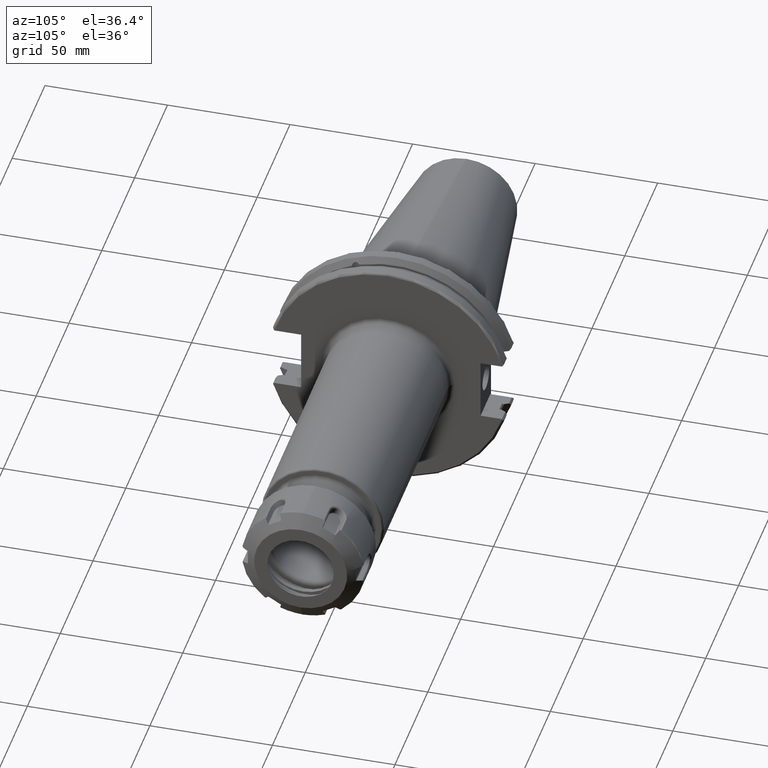
[diagram: clean part render]
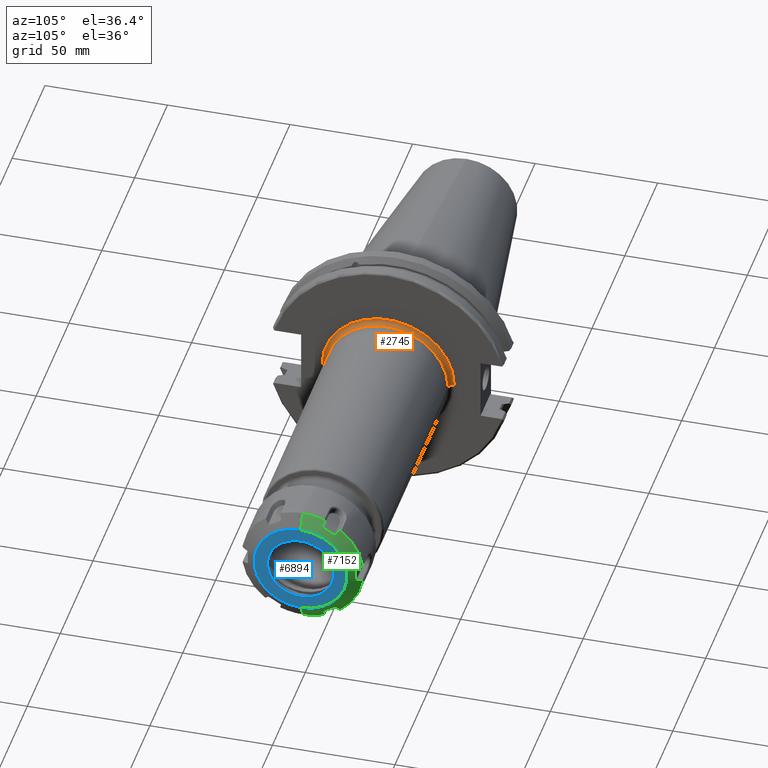
[diagram: same view with three faces highlighted in distinct colors, each labeled with its STEP entity id]
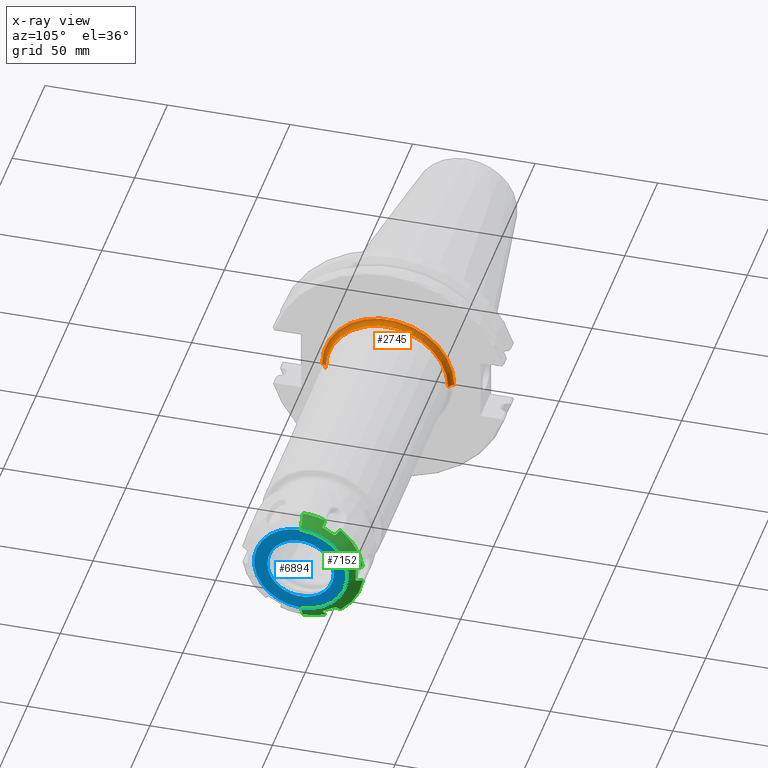
[diagram: x-ray of the same camera — body ghosted, the three highlighted faces saturated]
A machine part, auxiliary view with three faces highlighted in distinct colors.
The next image is the same camera in x-ray (body ghosted, the three faces saturated) — at least one of them is partly hidden behind the body in this view.
Their STEP definitions:

[orange] entity #2745 — the highlighted toroidal blend (fillet) surface has major radius 27.0002 mm and minor (blend) radius 2.0066 mm.
#398=CARTESIAN_POINT('',(8.29E-1,0.E0,0.E0));
#399=DIRECTION('',(1.E0,0.E0,0.E0));
#400=DIRECTION('',(0.E0,1.E0,0.E0));
#401=AXIS2_PLACEMENT_3D('',#398,#399,#400);
#408=CARTESIAN_POINT('',(8.29E-1,1.063E0,-1.435108976100E-12));
#409=DIRECTION('',(0.E0,1.350055484073E-12,1.E0));
#410=DIRECTION('',(-1.E0,-2.698263553519E-11,0.E0));
#411=AXIS2_PLACEMENT_3D('',#408,#409,#410);
#458=CARTESIAN_POINT('',(7.5E-1,0.E0,0.E0));
#459=DIRECTION('',(1.E0,0.E0,0.E0));
#460=DIRECTION('',(0.E0,1.E0,0.E0));
#461=AXIS2_PLACEMENT_3D('',#458,#459,#460);
#1771=CARTESIAN_POINT('',(8.29E-1,-1.063E0,1.434959789881E-12));
#1772=DIRECTION('',(0.E0,-1.349920175642E-12,-1.E0));
#1773=DIRECTION('',(-1.E0,2.698263553519E-11,0.E0));
#1774=AXIS2_PLACEMENT_3D('',#1771,#1772,#1773);
#2115=CARTESIAN_POINT('',(7.5E-1,-1.063E0,0.E0));
#2116=CARTESIAN_POINT('',(7.5E-1,1.063E0,0.E0));
#2117=VERTEX_POINT('',#2115);
#2118=VERTEX_POINT('',#2116);
#2119=CARTESIAN_POINT('',(8.29E-1,-9.84E-1,0.E0));
#2120=CARTESIAN_POINT('',(8.29E-1,9.84E-1,0.E0));
#2121=VERTEX_POINT('',#2119);
#2122=VERTEX_POINT('',#2120);
#2731=CARTESIAN_POINT('',(8.29E-1,0.E0,0.E0));
#2732=DIRECTION('',(1.E0,0.E0,0.E0));
#2733=DIRECTION('',(0.E0,9.998534503582E-1,-1.711951538007E-2));
#2734=AXIS2_PLACEMENT_3D('',#2731,#2732,#2733);
#2735=TOROIDAL_SURFACE('',#2734,1.063E0,7.9E-2);
#2737=ORIENTED_EDGE('',*,*,#2736,.F.);
#2739=ORIENTED_EDGE('',*,*,#2738,.T.);
#2740=ORIENTED_EDGE('',*,*,#2713,.T.);
#2742=ORIENTED_EDGE('',*,*,#2741,.F.);
#2743=EDGE_LOOP('',(#2737,#2739,#2740,#2742));
#2744=FACE_OUTER_BOUND('',#2743,.F.);
#2745=ADVANCED_FACE('',(#2744),#2735,.F.);
#402=CIRCLE('',#401,9.84E-1);
#412=CIRCLE('',#411,7.9E-2);
#462=CIRCLE('',#461,1.063E0);
#1775=CIRCLE('',#1774,7.9E-2);
#2713=EDGE_CURVE('',#2122,#2121,#402,.T.);
#2736=EDGE_CURVE('',#2118,#2117,#462,.T.);
#2738=EDGE_CURVE('',#2118,#2122,#412,.T.);
#2741=EDGE_CURVE('',#2117,#2121,#1775,.T.);

[blue] entity #6894 — the highlighted planar face has unit normal (1, 0, 0).
#5131=CARTESIAN_POINT('',(1.125E1,0.E0,0.E0));
#5132=DIRECTION('',(1.E0,0.E0,0.E0));
#5133=DIRECTION('',(0.E0,0.E0,1.E0));
#5134=AXIS2_PLACEMENT_3D('',#5131,#5132,#5133);
#5136=CARTESIAN_POINT('',(1.125E1,0.E0,0.E0));
#5137=DIRECTION('',(1.E0,0.E0,0.E0));
#5138=DIRECTION('',(0.E0,0.E0,-1.E0));
#5139=AXIS2_PLACEMENT_3D('',#5136,#5137,#5138);
#5141=CARTESIAN_POINT('',(1.125E1,0.E0,0.E0));
#5142=DIRECTION('',(1.E0,0.E0,0.E0));
#5143=DIRECTION('',(0.E0,1.E0,0.E0));
#5144=AXIS2_PLACEMENT_3D('',#5141,#5142,#5143);
#5146=CARTESIAN_POINT('',(1.125E1,0.E0,0.E0));
#5147=DIRECTION('',(1.E0,0.E0,0.E0));
#5148=DIRECTION('',(0.E0,-1.E0,0.E0));
#5149=AXIS2_PLACEMENT_3D('',#5146,#5147,#5148);
#6291=CARTESIAN_POINT('',(1.125E1,0.E0,1.9E1));
#6292=CARTESIAN_POINT('',(1.125E1,0.E0,-1.9E1));
#6293=VERTEX_POINT('',#6291);
#6294=VERTEX_POINT('',#6292);
#6505=CARTESIAN_POINT('',(1.125E1,1.355E1,0.E0));
#6506=CARTESIAN_POINT('',(1.125E1,-1.355E1,0.E0));
#6507=VERTEX_POINT('',#6505);
#6508=VERTEX_POINT('',#6506);
#6878=CARTESIAN_POINT('',(1.125E1,0.E0,0.E0));
#6879=DIRECTION('',(1.E0,0.E0,0.E0));
#6880=DIRECTION('',(0.E0,0.E0,-1.E0));
#6881=AXIS2_PLACEMENT_3D('',#6878,#6879,#6880);
#6882=PLANE('',#6881);
#6884=ORIENTED_EDGE('',*,*,#6883,.F.);
#6886=ORIENTED_EDGE('',*,*,#6885,.F.);
#6887=EDGE_LOOP('',(#6884,#6886));
#6888=FACE_OUTER_BOUND('',#6887,.F.);
#6890=ORIENTED_EDGE('',*,*,#6889,.T.);
#6891=ORIENTED_EDGE('',*,*,#6868,.T.);
#6892=EDGE_LOOP('',(#6890,#6891));
#6893=FACE_BOUND('',#6892,.F.);
#6894=ADVANCED_FACE('',(#6888,#6893),#6882,.T.);
#5135=CIRCLE('',#5134,1.9E1);
#5140=CIRCLE('',#5139,1.9E1);
#5145=CIRCLE('',#5144,1.355E1);
#5150=CIRCLE('',#5149,1.355E1);
#6868=EDGE_CURVE('',#6508,#6507,#5150,.T.);
#6883=EDGE_CURVE('',#6293,#6294,#5135,.T.);
#6885=EDGE_CURVE('',#6294,#6293,#5140,.T.);
#6889=EDGE_CURVE('',#6507,#6508,#5145,.T.);

[green] entity #7152 — the highlighted conical surface has half-angle 60 deg.
#5136=CARTESIAN_POINT('',(1.125E1,0.E0,0.E0));
#5137=DIRECTION('',(1.E0,0.E0,0.E0));
#5138=DIRECTION('',(0.E0,0.E0,-1.E0));
#5139=AXIS2_PLACEMENT_3D('',#5136,#5137,#5138);
#5222=DIRECTION('',(-5.E-1,1.894776180341E-10,8.660254037844E-1));
#5223=VECTOR('',#5222,6.639528095693E0);
#5224=CARTESIAN_POINT('',(1.125000000001E1,-3.124044621469E-10,
1.899999999999E1));
#5225=LINE('',#5224,#5223);
#5482=CARTESIAN_POINT('',(7.930235952160E0,0.E0,0.E0));
#5483=DIRECTION('',(-1.E0,0.E0,0.E0));
#5484=DIRECTION('',(0.E0,-2.466370407197E-11,1.E0));
#5485=AXIS2_PLACEMENT_3D('',#5482,#5483,#5484);
#5487=CARTESIAN_POINT('',(8.067319186688E0,9.192179591027E0,2.272376885589E1));
#5488=CARTESIAN_POINT('',(8.044731019267E0,9.168502570130E0,2.277555029390E1));
#5489=CARTESIAN_POINT('',(7.999295911063E0,9.121004027927E0,2.287942919105E1));
#5490=CARTESIAN_POINT('',(7.953342455106E0,9.073216616377E0,2.298393984293E1));
#5491=CARTESIAN_POINT('',(7.930235952160E0,9.049250724788E0,2.303635303862E1));
#5493=CARTESIAN_POINT('',(8.067319186688E0,9.192179591027E0,2.272376885589E1));
#5494=CARTESIAN_POINT('',(8.189820037069E0,9.119565231784E0,2.252426254354E1));
#5495=CARTESIAN_POINT('',(8.433972092865E0,8.974837799607E0,2.212662719166E1));
#5496=CARTESIAN_POINT('',(8.797661267953E0,8.759244144013E0,2.153428849114E1));
#5497=CARTESIAN_POINT('',(9.038406600502E0,8.616525813284E0,2.114217310012E1));
#5498=CARTESIAN_POINT('',(9.158352391105E0,8.545418276707E0,2.094680674902E1));
#5500=CARTESIAN_POINT('',(9.430874573907E0,8.765264587100E0,2.034278397546E1));
#5501=CARTESIAN_POINT('',(9.469443058028E0,9.261877618700E0,2.005606430799E1));
#5502=CARTESIAN_POINT('',(9.521178807998E0,1.025508052267E1,1.948263834402E1));
#5503=CARTESIAN_POINT('',(9.521178332046E0,1.174493362617E1,1.862247125366E1));
#5504=CARTESIAN_POINT('',(9.469442588168E0,1.273812843128E1,1.804904996557E1));
#5505=CARTESIAN_POINT('',(9.430874573907E0,1.323473541290E1,1.776233379105E1));
#5507=CARTESIAN_POINT('',(9.158352391105E0,1.386775763446E1,1.787395268810E1));
#5508=CARTESIAN_POINT('',(9.038440212986E0,1.400135863968E1,1.803317216605E1));
#5509=CARTESIAN_POINT('',(8.797739699423E0,1.426953143175E1,1.835276805443E1));
#5510=CARTESIAN_POINT('',(8.434050555279E0,1.467471493583E1,1.883564695108E1));
#5511=CARTESIAN_POINT('',(8.189853664668E0,1.494676348597E1,1.915986178807E1));
#5512=CARTESIAN_POINT('',(8.067319186688E0,1.508327130341E1,1.932254546992E1));
#5514=CARTESIAN_POINT('',(7.930235952160E0,1.542544157960E1,1.935505753219E1));
#5515=CARTESIAN_POINT('',(7.953328461842E0,1.536810222052E1,1.934960930672E1));
#5516=CARTESIAN_POINT('',(7.999268050358E0,1.525373443127E1,1.933874239938E1));
#5517=CARTESIAN_POINT('',(8.044717152930E0,1.513998865069E1,1.932793459357E1));
#5518=CARTESIAN_POINT('',(8.067319186688E0,1.508327130341E1,1.932254546992E1));
#5520=CARTESIAN_POINT('',(8.067319186688E0,2.427545089444E1,3.401223385967E0));
#5521=CARTESIAN_POINT('',(8.044745362796E0,2.430843546618E1,3.447589545245E0));
#5522=CARTESIAN_POINT('',(7.999324730498E0,2.437462703071E1,3.540634519384E0));
#5523=CARTESIAN_POINT('',(7.953356929931E0,2.444126316300E1,3.634304419003E0));
#5524=CARTESIAN_POINT('',(7.930235952160E0,2.447469230439E1,3.681295506429E0));
#5526=CARTESIAN_POINT('',(8.067319186688E0,2.427545089444E1,3.401223385967E0));
#5527=CARTESIAN_POINT('',(8.189820449666E0,2.406636547589E1,3.364355985404E0));
#5528=CARTESIAN_POINT('',(8.433973055635E0,2.364963850455E1,3.290875776767E0));
#5529=CARTESIAN_POINT('',(8.797662236057E0,2.302886130527E1,3.181416007526E0));
#5530=CARTESIAN_POINT('',(9.038407015420E0,2.261792119429E1,3.108956178505E0));
#5531=CARTESIAN_POINT('',(9.158352391105E0,2.241317591117E1,3.072854060917E0));
#5533=CARTESIAN_POINT('',(9.430874573907E0,2.2E1,2.580450184411E0));
#5534=CARTESIAN_POINT('',(9.469443053845E0,2.2E1,2.007010911654E0));
#5535=CARTESIAN_POINT('',(9.521178807039E0,2.2E1,8.601590640703E-1));
#5536=CARTESIAN_POINT('',(9.521178331339E0,2.2E1,-8.601753930873E-1));
#5537=CARTESIAN_POINT('',(9.469442584234E0,2.2E1,-2.007017893875E0));
#5538=CARTESIAN_POINT('',(9.430874573907E0,2.2E1,-2.580450184411E0));
#5540=CARTESIAN_POINT('',(9.158352391105E0,2.241317591117E1,-3.072854060917E0));
#5541=CARTESIAN_POINT('',(9.038440632719E0,2.261786380998E1,-3.108946060102E0));
#5542=CARTESIAN_POINT('',(8.797740678764E0,2.302872740911E1,-3.181392398020E0));
#5543=CARTESIAN_POINT('',(8.434051529518E0,2.364950456139E1,-3.290852158975E0));
#5544=CARTESIAN_POINT('',(8.189854082183E0,2.406630807184E1,-3.364345863521E0));
#5545=CARTESIAN_POINT('',(8.067319186688E0,2.427545089444E1,-3.401223385967E0));
#5547=CARTESIAN_POINT('',(7.930235952160E0,2.447469230439E1,-3.681295506429E0));
#5548=CARTESIAN_POINT('',(7.953299076440E0,2.444134680966E1,-3.634422000468E0));
#5549=CARTESIAN_POINT('',(7.999209543588E0,2.437479444522E1,-3.540869852672E0));
#5550=CARTESIAN_POINT('',(8.044688034070E0,2.430851923415E1,-3.447707297242E0));
#5551=CARTESIAN_POINT('',(8.067319186688E0,2.427545089444E1,-3.401223385967E0));
#5553=CARTESIAN_POINT('',(8.067319186688E0,1.508327130341E1,-1.932254546992E1));
#5554=CARTESIAN_POINT('',(8.044736463291E0,1.513994019343E1,-1.932792998930E1));
#5555=CARTESIAN_POINT('',(7.999306849361E0,1.525363758699E1,-1.933873319751E1));
#5556=CARTESIAN_POINT('',(7.953347948963E0,1.536805383344E1,-1.934960470912E1));
#5557=CARTESIAN_POINT('',(7.930235952160E0,1.542544157960E1,-1.935505753219E1));
#5559=CARTESIAN_POINT('',(8.067319186688E0,1.508327130341E1,-1.932254546992E1));
#5560=CARTESIAN_POINT('',(8.189820449666E0,1.494680048868E1,-1.915990588618E1));
#5561=CARTESIAN_POINT('',(8.433973055635E0,1.467480127565E1,-1.883574984687E1));
#5562=CARTESIAN_POINT('',(8.797662236057E0,1.426961773516E1,-1.835287090683E1));
#5563=CARTESIAN_POINT('',(9.038407015420E0,1.400139562698E1,-1.803321624580E1));
#5564=CARTESIAN_POINT('',(9.158352391105E0,1.386775763446E1,-1.787395268810E1));
#5566=CARTESIAN_POINT('',(9.430874573907E0,1.323473541290E1,-1.776233379105E1));
#5567=CARTESIAN_POINT('',(9.469443053845E0,1.273812243516E1,-1.804905342743E1));
#5568=CARTESIAN_POINT('',(9.521178807039E0,1.174491960078E1,-1.862247935122E1));
#5569=CARTESIAN_POINT('',(9.521178331339E0,1.025506625788E1,-1.948264657980E1));
#5570=CARTESIAN_POINT('',(9.469442584234E0,9.261871518055E0,-2.005606783019E1));
#5571=CARTESIAN_POINT('',(9.430874573907E0,8.765264587100E0,-2.034278397546E1));
#5573=CARTESIAN_POINT('',(9.158352391105E0,8.545418276707E0,-2.094680674902E1));
#5574=CARTESIAN_POINT('',(9.038440632719E0,8.616505637944E0,-2.114211766883E1));
#5575=CARTESIAN_POINT('',(8.797740678764E0,8.759197068462E0,-2.153415915213E1));
#5576=CARTESIAN_POINT('',(8.434051529518E0,8.974790710924E0,-2.212649781657E1));
#5577=CARTESIAN_POINT('',(8.189854082183E0,9.119545050993E0,-2.252420709727E1));
#5578=CARTESIAN_POINT('',(8.067319186688E0,9.192179591027E0,-2.272376885589E1));
#5580=CARTESIAN_POINT('',(7.930235952160E0,9.049250724788E0,-2.303635303862E1));
#5581=CARTESIAN_POINT('',(7.953364010072E0,9.073238973026E0,-2.298389094913E1));
#5582=CARTESIAN_POINT('',(7.999338827066E0,9.121048773642E0,-2.287933133256E1));
#5583=CARTESIAN_POINT('',(8.044752378717E0,9.168524959203E0,-2.277550132919E1));
#5584=CARTESIAN_POINT('',(8.067319186688E0,9.192179591027E0,-2.272376885589E1));
#5586=CARTESIAN_POINT('',(7.930235952160E0,0.E0,0.E0));
#5587=DIRECTION('',(-1.E0,0.E0,0.E0));
#5588=DIRECTION('',(0.E0,3.656262919106E-1,-9.307617389341E-1));
#5589=AXIS2_PLACEMENT_3D('',#5586,#5587,#5588);
#5591=DIRECTION('',(-5.E-1,-1.894783440762E-10,-8.660254037844E-1));
#5592=VECTOR('',#5591,6.639528095693E0);
#5593=CARTESIAN_POINT('',(1.125000000001E1,3.123978469189E-10,
-1.899999999999E1));
#5594=LINE('',#5593,#5592);
#5833=CARTESIAN_POINT('',(7.930235952160E0,9.049250724788E0,2.303635303862E1));
#5839=CARTESIAN_POINT('',(7.930235952160E0,1.542544157960E1,1.935505753219E1));
#5856=CARTESIAN_POINT('',(7.930235952160E0,0.E0,0.E0));
#5857=DIRECTION('',(1.E0,0.E0,0.E0));
#5858=DIRECTION('',(0.E0,9.888764567428E-1,1.487392123810E-1));
#5859=AXIS2_PLACEMENT_3D('',#5856,#5857,#5858);
#5867=CARTESIAN_POINT('',(7.930235952160E0,2.447469230439E1,3.681295506429E0));
#5873=CARTESIAN_POINT('',(7.930235952160E0,2.447469230439E1,-3.681295506429E0));
#5890=CARTESIAN_POINT('',(7.930235952160E0,0.E0,0.E0));
#5891=DIRECTION('',(1.E0,0.E0,0.E0));
#5892=DIRECTION('',(0.E0,6.232501648322E-1,-7.820225265532E-1));
#5893=AXIS2_PLACEMENT_3D('',#5890,#5891,#5892);
#5901=CARTESIAN_POINT('',(7.930235952160E0,1.542544157960E1,-1.935505753219E1));
#5907=CARTESIAN_POINT('',(7.930235952160E0,9.049250724788E0,-2.303635303862E1));
#5932=CARTESIAN_POINT('',(9.158352391105E0,8.545418276707E0,-2.094680674902E1));
#5933=CARTESIAN_POINT('',(9.195827185297E0,8.523202071491E0,-2.088576822684E1));
#5934=CARTESIAN_POINT('',(9.267010510108E0,8.504128660717E0,-2.076041098824E1));
#5935=CARTESIAN_POINT('',(9.353667059567E0,8.543476369498E0,-2.058191067415E1));
#5936=CARTESIAN_POINT('',(9.409685656116E0,8.633558628979E0,-2.043906101996E1));
#5937=CARTESIAN_POINT('',(9.427285912052E0,8.719056490417E0,-2.036946223252E1));
#5938=CARTESIAN_POINT('',(9.430874573907E0,8.765264587100E0,-2.034278397546E1));
#5953=CARTESIAN_POINT('',(9.430874573907E0,1.323473541290E1,-1.776233379105E1));
#5954=CARTESIAN_POINT('',(9.427285912052E0,1.328094350958E1,-1.773565553399E1));
#5955=CARTESIAN_POINT('',(9.409685656116E0,1.338396675829E1,-1.769641160774E1));
#5956=CARTESIAN_POINT('',(9.353667059567E0,1.355271931748E1,-1.768982290969E1));
#5957=CARTESIAN_POINT('',(9.267010510108E0,1.372697897846E1,-1.774499695135E1));
#5958=CARTESIAN_POINT('',(9.195827185297E0,1.382600482625E1,-1.782419362892E1));
#5959=CARTESIAN_POINT('',(9.158352391105E0,1.386775763446E1,-1.787395268810E1));
#6019=CARTESIAN_POINT('',(9.158352391105E0,2.241317591117E1,-3.072854060917E0));
#6020=CARTESIAN_POINT('',(9.195827185297E0,2.234920689775E1,-3.061574597922E0));
#6021=CARTESIAN_POINT('',(9.267010510108E0,2.223110763918E1,-3.015414036886E0));
#6022=CARTESIAN_POINT('',(9.353667059567E0,2.209619568698E1,-2.892087764456E0));
#6023=CARTESIAN_POINT('',(9.409685656116E0,2.201752538727E1,-2.742649412221E0));
#6024=CARTESIAN_POINT('',(9.427285912052E0,2.2E1,-2.633806698529E0));
#6025=CARTESIAN_POINT('',(9.430874573907E0,2.2E1,-2.580450184411E0));
#6040=CARTESIAN_POINT('',(9.430874573907E0,2.2E1,2.580450184411E0));
#6041=CARTESIAN_POINT('',(9.427285912052E0,2.2E1,2.633806698529E0));
#6042=CARTESIAN_POINT('',(9.409685656116E0,2.201752538727E1,2.742649412221E0));
#6043=CARTESIAN_POINT('',(9.353667059567E0,2.209619568698E1,2.892087764456E0));
#6044=CARTESIAN_POINT('',(9.267010510108E0,2.223110763918E1,3.015414036886E0));
#6045=CARTESIAN_POINT('',(9.195827185297E0,2.234920689775E1,3.061574597922E0));
#6046=CARTESIAN_POINT('',(9.158352391105E0,2.241317591117E1,3.072854060917E0));
#6106=CARTESIAN_POINT('',(9.158352391105E0,1.386775763446E1,1.787395268810E1));
#6107=CARTESIAN_POINT('',(9.195827185297E0,1.382600482625E1,1.782419362892E1));
#6108=CARTESIAN_POINT('',(9.267010510108E0,1.372697897846E1,1.774499695135E1));
#6109=CARTESIAN_POINT('',(9.353667059567E0,1.355271931748E1,1.768982290969E1));
#6110=CARTESIAN_POINT('',(9.409685656116E0,1.338396675829E1,1.769641160774E1));
#6111=CARTESIAN_POINT('',(9.427285912052E0,1.328094350958E1,1.773565553399E1));
#6112=CARTESIAN_POINT('',(9.430874573907E0,1.323473541290E1,1.776233379105E1));
#6127=CARTESIAN_POINT('',(9.430874573907E0,8.765264587100E0,2.034278397546E1));
#6128=CARTESIAN_POINT('',(9.427285912052E0,8.719056490417E0,2.036946223252E1));
#6129=CARTESIAN_POINT('',(9.409685656116E0,8.633558628979E0,2.043906101996E1));
#6130=CARTESIAN_POINT('',(9.353667059567E0,8.543476369498E0,2.058191067415E1));
#6131=CARTESIAN_POINT('',(9.267010510108E0,8.504128660717E0,2.076041098824E1));
#6132=CARTESIAN_POINT('',(9.195827185297E0,8.523202071491E0,2.088576822684E1));
#6133=CARTESIAN_POINT('',(9.158352391105E0,8.545418276707E0,2.094680674902E1));
#6291=CARTESIAN_POINT('',(1.125E1,0.E0,1.9E1));
#6292=CARTESIAN_POINT('',(1.125E1,0.E0,-1.9E1));
#6293=VERTEX_POINT('',#6291);
#6294=VERTEX_POINT('',#6292);
#6346=CARTESIAN_POINT('',(9.430874573907E0,8.765264587100E0,-2.034278397546E1));
#6348=VERTEX_POINT('',#6346);
#6350=CARTESIAN_POINT('',(9.158352391105E0,8.545418276707E0,-2.094680674902E1));
#6352=VERTEX_POINT('',#6350);
#6357=CARTESIAN_POINT('',(9.158352391105E0,1.386775763446E1,-1.787395268810E1));
#6358=VERTEX_POINT('',#6357);
#6359=CARTESIAN_POINT('',(9.430874573907E0,1.323473541290E1,-1.776233379105E1));
#6360=VERTEX_POINT('',#6359);
#6362=CARTESIAN_POINT('',(8.067319186688E0,9.192179591027E0,-2.272376885589E1));
#6364=VERTEX_POINT('',#6362);
#6368=CARTESIAN_POINT('',(8.067319186688E0,1.508327130341E1,-1.932254546992E1));
#6369=VERTEX_POINT('',#6368);
#6371=CARTESIAN_POINT('',(9.430874573907E0,2.2E1,-2.580450184411E0));
#6373=VERTEX_POINT('',#6371);
#6375=CARTESIAN_POINT('',(9.158352391105E0,2.241317591117E1,-3.072854060917E0));
#6377=VERTEX_POINT('',#6375);
#6382=CARTESIAN_POINT('',(9.158352391105E0,2.241317591117E1,3.072854060917E0));
#6383=VERTEX_POINT('',#6382);
#6384=CARTESIAN_POINT('',(9.430874573907E0,2.2E1,2.580450184411E0));
#6385=VERTEX_POINT('',#6384);
#6387=CARTESIAN_POINT('',(8.067319186688E0,2.427545089444E1,-3.401223385967E0));
#6389=VERTEX_POINT('',#6387);
#6393=CARTESIAN_POINT('',(8.067319186688E0,2.427545089444E1,3.401223385967E0));
#6394=VERTEX_POINT('',#6393);
#6396=CARTESIAN_POINT('',(9.430874573907E0,1.323473541290E1,1.776233379105E1));
#6398=VERTEX_POINT('',#6396);
#6400=CARTESIAN_POINT('',(9.158352391105E0,1.386775763446E1,1.787395268810E1));
#6402=VERTEX_POINT('',#6400);
#6407=CARTESIAN_POINT('',(9.158352391105E0,8.545418276707E0,2.094680674902E1));
#6408=VERTEX_POINT('',#6407);
#6409=CARTESIAN_POINT('',(9.430874573907E0,8.765264587100E0,2.034278397546E1));
#6410=VERTEX_POINT('',#6409);
#6412=CARTESIAN_POINT('',(8.067319186688E0,1.508327130341E1,1.932254546992E1));
#6414=VERTEX_POINT('',#6412);
#6418=CARTESIAN_POINT('',(8.067319186688E0,9.192179591027E0,2.272376885589E1));
#6419=VERTEX_POINT('',#6418);
#6454=VERTEX_POINT('',#5833);
#6455=CARTESIAN_POINT('',(7.930235952160E0,-6.104266757813E-10,2.475E1));
#6456=VERTEX_POINT('',#6455);
#6462=VERTEX_POINT('',#5867);
#6463=VERTEX_POINT('',#5839);
#6466=VERTEX_POINT('',#5901);
#6467=VERTEX_POINT('',#5873);
#6471=CARTESIAN_POINT('',(7.930235952160E0,6.104126182516E-10,-2.475E1));
#6472=VERTEX_POINT('',#6471);
#6475=VERTEX_POINT('',#5907);
#7093=CARTESIAN_POINT('',(9.590117976086E0,0.E0,0.E0));
#7094=DIRECTION('',(-1.E0,0.E0,0.E0));
#7095=DIRECTION('',(0.E0,0.E0,-1.E0));
#7096=AXIS2_PLACEMENT_3D('',#7093,#7094,#7095);
#7097=CONICAL_SURFACE('',#7096,2.187499999999E1,6.E1);
#7099=ORIENTED_EDGE('',*,*,#7098,.T.);
#7101=ORIENTED_EDGE('',*,*,#7100,.F.);
#7103=ORIENTED_EDGE('',*,*,#7102,.T.);
#7105=ORIENTED_EDGE('',*,*,#7104,.F.);
#7107=ORIENTED_EDGE('',*,*,#7106,.T.);
#7109=ORIENTED_EDGE('',*,*,#7108,.F.);
#7111=ORIENTED_EDGE('',*,*,#7110,.T.);
#7113=ORIENTED_EDGE('',*,*,#7112,.F.);
#7115=ORIENTED_EDGE('',*,*,#7114,.F.);
#7117=ORIENTED_EDGE('',*,*,#7116,.F.);
#7119=ORIENTED_EDGE('',*,*,#7118,.T.);
#7121=ORIENTED_EDGE('',*,*,#7120,.F.);
#7123=ORIENTED_EDGE('',*,*,#7122,.T.);
#7125=ORIENTED_EDGE('',*,*,#7124,.F.);
#7127=ORIENTED_EDGE('',*,*,#7126,.T.);
#7129=ORIENTED_EDGE('',*,*,#7128,.F.);
#7131=ORIENTED_EDGE('',*,*,#7130,.F.);
#7133=ORIENTED_EDGE('',*,*,#7132,.F.);
#7135=ORIENTED_EDGE('',*,*,#7134,.T.);
#7137=ORIENTED_EDGE('',*,*,#7136,.F.);
#7139=ORIENTED_EDGE('',*,*,#7138,.T.);
#7141=ORIENTED_EDGE('',*,*,#7140,.F.);
#7143=ORIENTED_EDGE('',*,*,#7142,.T.);
#7145=ORIENTED_EDGE('',*,*,#7144,.F.);
#7146=ORIENTED_EDGE('',*,*,#7082,.T.);
#7147=ORIENTED_EDGE('',*,*,#6937,.F.);
#7148=ORIENTED_EDGE('',*,*,#6885,.T.);
#7149=ORIENTED_EDGE('',*,*,#6934,.T.);
#7150=EDGE_LOOP('',(#7099,#7101,#7103,#7105,#7107,#7109,#7111,#7113,#7115,#7117,
#7119,#7121,#7123,#7125,#7127,#7129,#7131,#7133,#7135,#7137,#7139,#7141,#7143,
#7145,#7146,#7147,#7148,#7149));
#7151=FACE_OUTER_BOUND('',#7150,.F.);
#7152=ADVANCED_FACE('',(#7151),#7097,.T.);
#5140=CIRCLE('',#5139,1.9E1);
#5486=CIRCLE('',#5485,2.475E1);
#5492=B_SPLINE_CURVE_WITH_KNOTS('',3,(#5487,#5488,#5489,#5490,#5491),
.UNSPECIFIED.,.F.,.F.,(4,1,4),(0.E0,5.E-1,1.E0),.UNSPECIFIED.);
#5499=B_SPLINE_CURVE_WITH_KNOTS('',3,(#5493,#5494,#5495,#5496,#5497,#5498),
.UNSPECIFIED.,.F.,.F.,(4,1,1,4),(0.E0,3.333333333333E-1,6.666666666667E-1,1.E0),
.UNSPECIFIED.);
#5506=B_SPLINE_CURVE_WITH_KNOTS('',3,(#5500,#5501,#5502,#5503,#5504,#5505),
.UNSPECIFIED.,.F.,.F.,(4,1,1,4),(0.E0,3.333333333333E-1,6.666666666667E-1,1.E0),
.UNSPECIFIED.);
#5513=B_SPLINE_CURVE_WITH_KNOTS('',3,(#5507,#5508,#5509,#5510,#5511,#5512),
.UNSPECIFIED.,.F.,.F.,(4,1,1,4),(0.E0,3.333333333333E-1,6.666666666667E-1,1.E0),
.UNSPECIFIED.);
#5519=B_SPLINE_CURVE_WITH_KNOTS('',3,(#5514,#5515,#5516,#5517,#5518),
.UNSPECIFIED.,.F.,.F.,(4,1,4),(0.E0,5.E-1,1.E0),.UNSPECIFIED.);
#5525=B_SPLINE_CURVE_WITH_KNOTS('',3,(#5520,#5521,#5522,#5523,#5524),
.UNSPECIFIED.,.F.,.F.,(4,1,4),(0.E0,5.E-1,1.E0),.UNSPECIFIED.);
#5532=B_SPLINE_CURVE_WITH_KNOTS('',3,(#5526,#5527,#5528,#5529,#5530,#5531),
.UNSPECIFIED.,.F.,.F.,(4,1,1,4),(0.E0,3.333333333333E-1,6.666666666667E-1,1.E0),
.UNSPECIFIED.);
#5539=B_SPLINE_CURVE_WITH_KNOTS('',3,(#5533,#5534,#5535,#5536,#5537,#5538),
.UNSPECIFIED.,.F.,.F.,(4,1,1,4),(0.E0,3.333333333333E-1,6.666666666667E-1,1.E0),
.UNSPECIFIED.);
#5546=B_SPLINE_CURVE_WITH_KNOTS('',3,(#5540,#5541,#5542,#5543,#5544,#5545),
.UNSPECIFIED.,.F.,.F.,(4,1,1,4),(0.E0,3.333333333333E-1,6.666666666667E-1,1.E0),
.UNSPECIFIED.);
#5552=B_SPLINE_CURVE_WITH_KNOTS('',3,(#5547,#5548,#5549,#5550,#5551),
.UNSPECIFIED.,.F.,.F.,(4,1,4),(0.E0,5.E-1,1.E0),.UNSPECIFIED.);
#5558=B_SPLINE_CURVE_WITH_KNOTS('',3,(#5553,#5554,#5555,#5556,#5557),
.UNSPECIFIED.,.F.,.F.,(4,1,4),(0.E0,5.E-1,1.E0),.UNSPECIFIED.);
#5565=B_SPLINE_CURVE_WITH_KNOTS('',3,(#5559,#5560,#5561,#5562,#5563,#5564),
.UNSPECIFIED.,.F.,.F.,(4,1,1,4),(0.E0,3.333333333333E-1,6.666666666667E-1,1.E0),
.UNSPECIFIED.);
#5572=B_SPLINE_CURVE_WITH_KNOTS('',3,(#5566,#5567,#5568,#5569,#5570,#5571),
.UNSPECIFIED.,.F.,.F.,(4,1,1,4),(0.E0,3.333333333333E-1,6.666666666667E-1,1.E0),
.UNSPECIFIED.);
#5579=B_SPLINE_CURVE_WITH_KNOTS('',3,(#5573,#5574,#5575,#5576,#5577,#5578),
.UNSPECIFIED.,.F.,.F.,(4,1,1,4),(0.E0,3.333333333333E-1,6.666666666667E-1,1.E0),
.UNSPECIFIED.);
#5585=B_SPLINE_CURVE_WITH_KNOTS('',3,(#5580,#5581,#5582,#5583,#5584),
.UNSPECIFIED.,.F.,.F.,(4,1,4),(0.E0,5.E-1,1.E0),.UNSPECIFIED.);
#5590=CIRCLE('',#5589,2.475E1);
#5860=CIRCLE('',#5859,2.475E1);
#5894=CIRCLE('',#5893,2.475E1);
#5939=B_SPLINE_CURVE_WITH_KNOTS('',3,(#5932,#5933,#5934,#5935,#5936,#5937,
#5938),.UNSPECIFIED.,.F.,.F.,(4,1,1,1,4),(0.E0,2.5E-1,5.E-1,7.5E-1,1.E0),
.UNSPECIFIED.);
#5960=B_SPLINE_CURVE_WITH_KNOTS('',3,(#5953,#5954,#5955,#5956,#5957,#5958,
#5959),.UNSPECIFIED.,.F.,.F.,(4,1,1,1,4),(0.E0,2.5E-1,5.E-1,7.5E-1,1.E0),
.UNSPECIFIED.);
#6026=B_SPLINE_CURVE_WITH_KNOTS('',3,(#6019,#6020,#6021,#6022,#6023,#6024,
#6025),.UNSPECIFIED.,.F.,.F.,(4,1,1,1,4),(0.E0,2.5E-1,5.E-1,7.5E-1,1.E0),
.UNSPECIFIED.);
#6047=B_SPLINE_CURVE_WITH_KNOTS('',3,(#6040,#6041,#6042,#6043,#6044,#6045,
#6046),.UNSPECIFIED.,.F.,.F.,(4,1,1,1,4),(0.E0,2.5E-1,5.E-1,7.5E-1,1.E0),
.UNSPECIFIED.);
#6113=B_SPLINE_CURVE_WITH_KNOTS('',3,(#6106,#6107,#6108,#6109,#6110,#6111,
#6112),.UNSPECIFIED.,.F.,.F.,(4,1,1,1,4),(0.E0,2.5E-1,5.E-1,7.5E-1,1.E0),
.UNSPECIFIED.);
#6134=B_SPLINE_CURVE_WITH_KNOTS('',3,(#6127,#6128,#6129,#6130,#6131,#6132,
#6133),.UNSPECIFIED.,.F.,.F.,(4,1,1,1,4),(0.E0,2.5E-1,5.E-1,7.5E-1,1.E0),
.UNSPECIFIED.);
#6885=EDGE_CURVE('',#6294,#6293,#5140,.T.);
#6934=EDGE_CURVE('',#6293,#6456,#5225,.T.);
#6937=EDGE_CURVE('',#6294,#6472,#5594,.T.);
#7082=EDGE_CURVE('',#6475,#6472,#5590,.T.);
#7098=EDGE_CURVE('',#6456,#6454,#5486,.T.);
#7100=EDGE_CURVE('',#6419,#6454,#5492,.T.);
#7102=EDGE_CURVE('',#6419,#6408,#5499,.T.);
#7104=EDGE_CURVE('',#6410,#6408,#6134,.T.);
#7106=EDGE_CURVE('',#6410,#6398,#5506,.T.);
#7108=EDGE_CURVE('',#6402,#6398,#6113,.T.);
#7110=EDGE_CURVE('',#6402,#6414,#5513,.T.);
#7112=EDGE_CURVE('',#6463,#6414,#5519,.T.);
#7114=EDGE_CURVE('',#6462,#6463,#5860,.T.);
#7116=EDGE_CURVE('',#6394,#6462,#5525,.T.);
#7118=EDGE_CURVE('',#6394,#6383,#5532,.T.);
#7120=EDGE_CURVE('',#6385,#6383,#6047,.T.);
#7122=EDGE_CURVE('',#6385,#6373,#5539,.T.);
#7124=EDGE_CURVE('',#6377,#6373,#6026,.T.);
#7126=EDGE_CURVE('',#6377,#6389,#5546,.T.);
#7128=EDGE_CURVE('',#6467,#6389,#5552,.T.);
#7130=EDGE_CURVE('',#6466,#6467,#5894,.T.);
#7132=EDGE_CURVE('',#6369,#6466,#5558,.T.);
#7134=EDGE_CURVE('',#6369,#6358,#5565,.T.);
#7136=EDGE_CURVE('',#6360,#6358,#5960,.T.);
#7138=EDGE_CURVE('',#6360,#6348,#5572,.T.);
#7140=EDGE_CURVE('',#6352,#6348,#5939,.T.);
#7142=EDGE_CURVE('',#6352,#6364,#5579,.T.);
#7144=EDGE_CURVE('',#6475,#6364,#5585,.T.);